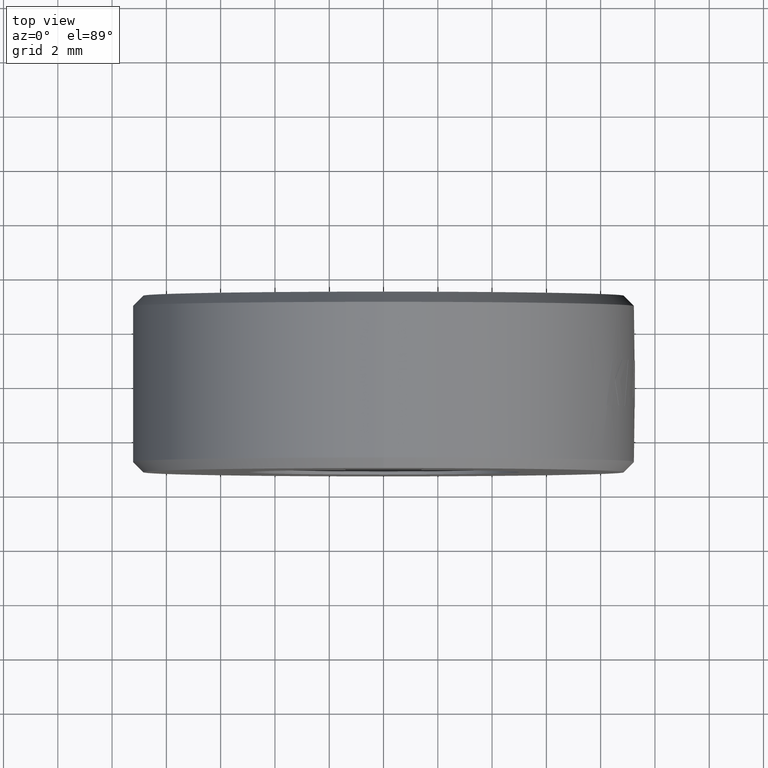
[diagram: clean part render]
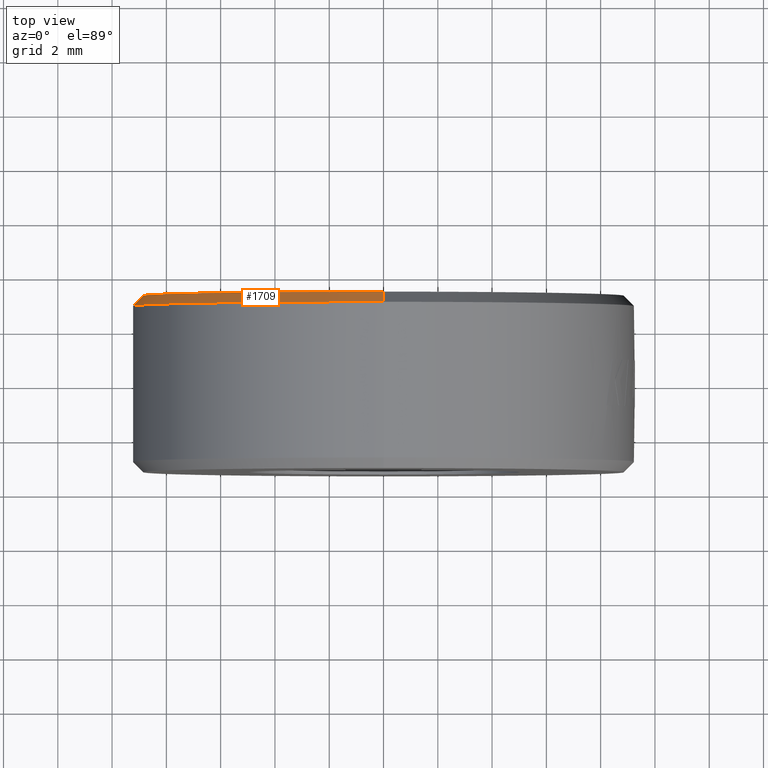
[diagram: same view with one face highlighted and labeled with its STEP entity id]
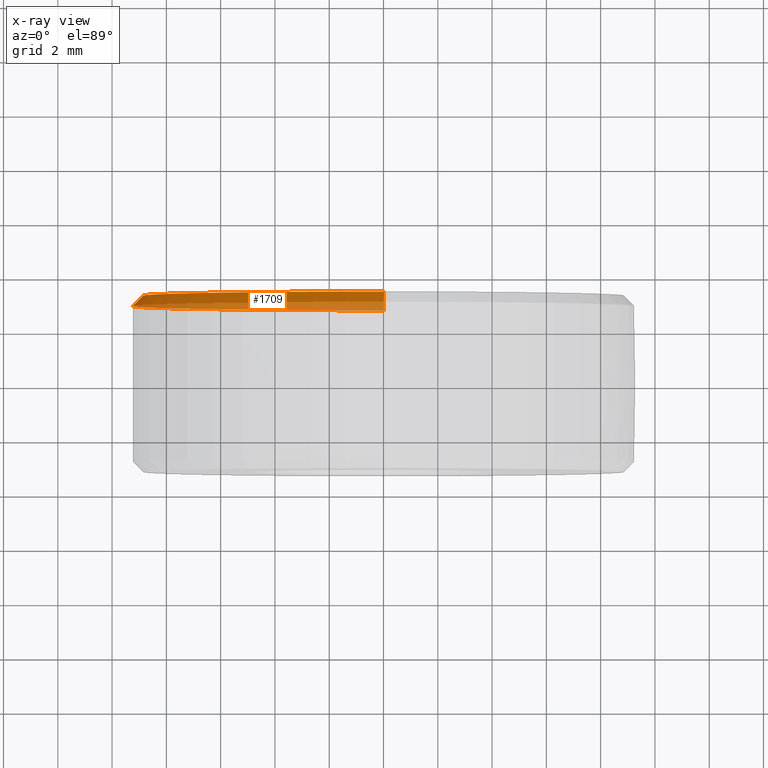
[diagram: x-ray of the same camera — body ghosted, the highlighted face saturated]
A machine part, top view. The second image highlights one B-rep face of the part: STEP entity #1709.
The next image is the same camera in x-ray: the body ghosted, the highlighted face saturated — about 41% of this face is hidden behind the body in this view.
In plain terms, the highlighted conical surface has half-angle 45 deg.
Its self-contained STEP definition (entity closure, byte-faithful):
#22 = ORIENTED_EDGE ( 'NONE', *, *, #2372, .T. ) ;
#36 = CARTESIAN_POINT ( 'NONE',  ( 1.132798289211301501E-15, 2.868900000000007999, -9.250000000000000000 ) ) ;
#74 = CARTESIAN_POINT ( 'NONE',  ( 0.000000000000000000, 2.868900000000007999, 9.250000000000000000 ) ) ;
#116 = CARTESIAN_POINT ( 'NONE',  ( 0.000000000000000000, 3.250000000000000000, 0.000000000000000000 ) ) ;
#200 = CARTESIAN_POINT ( 'NONE',  ( 0.000000000000000000, 3.250000000000000000, 0.000000000000000000 ) ) ;
#289 = VECTOR ( 'NONE', #1811, 1000.000000000000114 ) ;
#299 = DIRECTION ( 'NONE',  ( 0.000000000000000000, 1.000000000000000000, 0.000000000000000000 ) ) ;
#466 = DIRECTION ( 'NONE',  ( 0.000000000000000000, 0.000000000000000000, 1.000000000000000000 ) ) ;
#485 = CARTESIAN_POINT ( 'NONE',  ( 0.000000000000000000, 3.250000000000000000, -8.868900000000010664 ) ) ;
#564 = VERTEX_POINT ( 'NONE', #1479 ) ;
#675 = LINE ( 'NONE', #2202, #2301 ) ;
#681 = DIRECTION ( 'NONE',  ( 0.000000000000000000, 0.000000000000000000, -1.000000000000000000 ) ) ;
#686 = CONICAL_SURFACE ( 'NONE', #2090, 8.868900000000010664, 0.7853981633974437271 ) ;
#779 = ORIENTED_EDGE ( 'NONE', *, *, #1225, .F. ) ;
#885 = AXIS2_PLACEMENT_3D ( 'NONE', #116, #299, #1381 ) ;
#915 = VERTEX_POINT ( 'NONE', #74 ) ;
#1225 = EDGE_CURVE ( 'NONE', #1527, #915, #675, .T. ) ;
#1288 = EDGE_LOOP ( 'NONE', ( #779, #2051, #22, #1497 ) ) ;
#1381 = DIRECTION ( 'NONE',  ( 0.000000000000000000, 0.000000000000000000, 1.000000000000000000 ) ) ;
#1391 = CIRCLE ( 'NONE', #1716, 9.250000000000000000 ) ;
#1431 = DIRECTION ( 'NONE',  ( 8.659560562354893415E-17, -0.7071067811865507924, 0.7071067811865442421 ) ) ;
#1479 = CARTESIAN_POINT ( 'NONE',  ( 0.000000000000000000, 3.250000000000000000, -8.868900000000010664 ) ) ;
#1497 = ORIENTED_EDGE ( 'NONE', *, *, #2083, .F. ) ;
#1527 = VERTEX_POINT ( 'NONE', #1815 ) ;
#1590 = LINE ( 'NONE', #485, #289 ) ;
#1596 = DIRECTION ( 'NONE',  ( 0.000000000000000000, -1.000000000000000000, 0.000000000000000000 ) ) ;
#1709 = ADVANCED_FACE ( 'NONE', ( #1898 ), #686, .T. ) ;
#1716 = AXIS2_PLACEMENT_3D ( 'NONE', #2359, #1596, #466 ) ;
#1811 = DIRECTION ( 'NONE',  ( 0.000000000000000000, -0.7071067811865507924, -0.7071067811865442421 ) ) ;
#1815 = CARTESIAN_POINT ( 'NONE',  ( 1.109462644453549546E-15, 3.250000000000000000, 8.868900000000010664 ) ) ;
#1833 = CIRCLE ( 'NONE', #885, 8.868900000000010664 ) ;
#1898 = FACE_OUTER_BOUND ( 'NONE', #1288, .T. ) ;
#2051 = ORIENTED_EDGE ( 'NONE', *, *, #2376, .F. ) ;
#2083 = EDGE_CURVE ( 'NONE', #915, #2295, #1391, .T. ) ;
#2090 = AXIS2_PLACEMENT_3D ( 'NONE', #200, #2379, #681 ) ;
#2202 = CARTESIAN_POINT ( 'NONE',  ( 1.086126999695797395E-15, 3.250000000000000000, 8.868900000000010664 ) ) ;
#2295 = VERTEX_POINT ( 'NONE', #36 ) ;
#2301 = VECTOR ( 'NONE', #1431, 1000.000000000000114 ) ;
#2359 = CARTESIAN_POINT ( 'NONE',  ( 0.000000000000000000, 2.868900000000007999, 0.000000000000000000 ) ) ;
#2372 = EDGE_CURVE ( 'NONE', #564, #2295, #1590, .T. ) ;
#2376 = EDGE_CURVE ( 'NONE', #564, #1527, #1833, .T. ) ;
#2379 = DIRECTION ( 'NONE',  ( 0.000000000000000000, -1.000000000000000000, 0.000000000000000000 ) ) ;